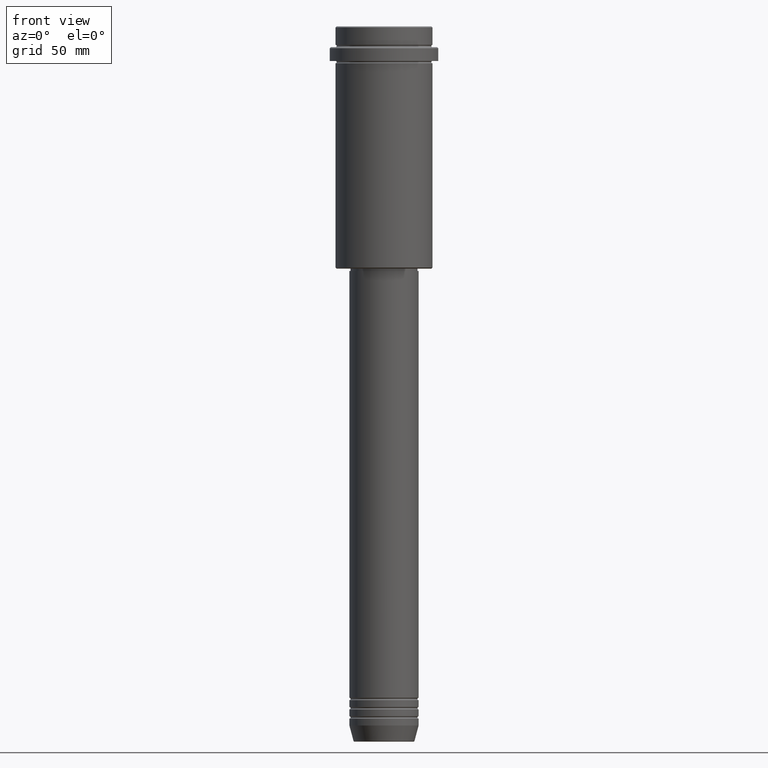
[diagram: clean part render]
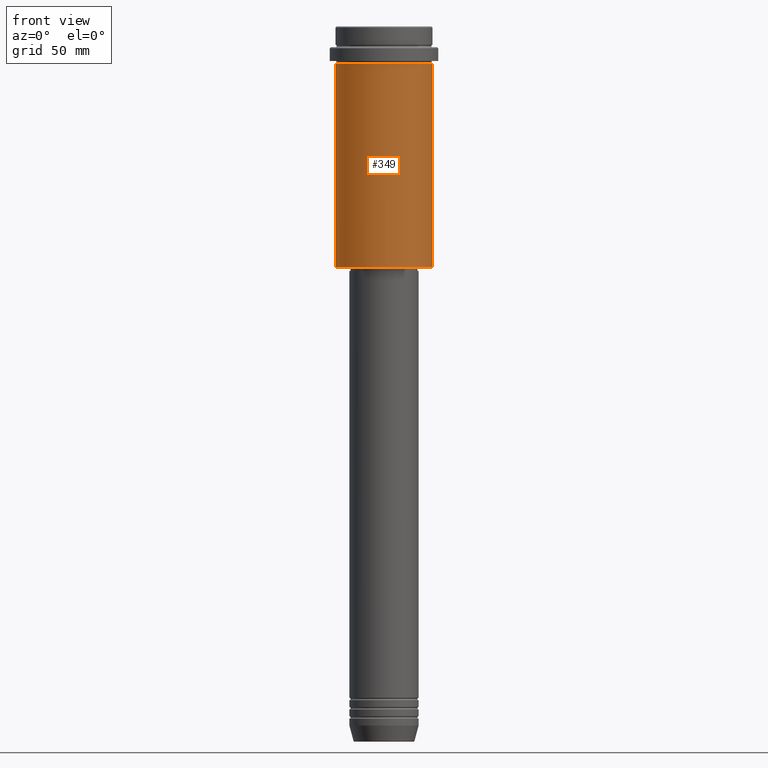
[diagram: same view with one face highlighted and labeled with its STEP entity id]
A machine part, front view. The second image highlights one B-rep face of the part: STEP entity #349.
In plain terms, the highlighted cylindrical surface (partial cylindrical patch) has radius 21 mm, axis along (-0, -0, 1).
Its self-contained STEP definition (entity closure, byte-faithful):
#50 = CYLINDRICAL_SURFACE ( 'NONE', #871, 21.00000000000000000 ) ;
#53 = CARTESIAN_POINT ( 'NONE',  ( 0.000000000000000000, 0.000000000000000000, -104.5000000000000853 ) ) ;
#63 = FACE_OUTER_BOUND ( 'NONE', #1132, .T. ) ;
#82 = EDGE_CURVE ( 'NONE', #336, #1262, #97, .T. ) ;
#97 = LINE ( 'NONE', #856, #958 ) ;
#156 = DIRECTION ( 'NONE',  ( -0.000000000000000000, -0.000000000000000000, 1.000000000000000000 ) ) ;
#159 = CARTESIAN_POINT ( 'NONE',  ( 0.000000000000000000, 0.000000000000000000, -16.00000000000000355 ) ) ;
#166 = CARTESIAN_POINT ( 'NONE',  ( 21.00000000000000000, 0.000000000000000000, -16.00000000000000355 ) ) ;
#239 = ORIENTED_EDGE ( 'NONE', *, *, #543, .F. ) ;
#287 = CARTESIAN_POINT ( 'NONE',  ( 21.00000000000000000, 0.000000000000000000, -104.5000000000000853 ) ) ;
#297 = CARTESIAN_POINT ( 'NONE',  ( 0.000000000000000000, 0.000000000000000000, 0.000000000000000000 ) ) ;
#336 = VERTEX_POINT ( 'NONE', #287 ) ;
#349 = ADVANCED_FACE ( 'NONE', ( #63 ), #50, .T. ) ;
#373 = DIRECTION ( 'NONE',  ( 1.000000000000000000, 0.000000000000000000, 0.000000000000000000 ) ) ;
#425 = CARTESIAN_POINT ( 'NONE',  ( -21.00000000000000000, 2.571758278209441661E-15, -104.5000000000000853 ) ) ;
#442 = CARTESIAN_POINT ( 'NONE',  ( -21.00000000000000000, 2.571758278209441661E-15, -16.00000000000000355 ) ) ;
#508 = AXIS2_PLACEMENT_3D ( 'NONE', #159, #921, #373 ) ;
#543 = EDGE_CURVE ( 'NONE', #1019, #952, #898, .T. ) ;
#569 = EDGE_CURVE ( 'NONE', #1019, #336, #983, .T. ) ;
#661 = DIRECTION ( 'NONE',  ( -0.000000000000000000, -0.000000000000000000, 1.000000000000000000 ) ) ;
#713 = DIRECTION ( 'NONE',  ( -1.000000000000000000, 0.000000000000000000, 0.000000000000000000 ) ) ;
#722 = DIRECTION ( 'NONE',  ( -0.000000000000000000, -0.000000000000000000, 1.000000000000000000 ) ) ;
#740 = DIRECTION ( 'NONE',  ( 1.000000000000000000, 0.000000000000000000, 0.000000000000000000 ) ) ;
#829 = CIRCLE ( 'NONE', #508, 21.00000000000000000 ) ;
#841 = ORIENTED_EDGE ( 'NONE', *, *, #569, .T. ) ;
#856 = CARTESIAN_POINT ( 'NONE',  ( 21.00000000000000000, 0.000000000000000000, 0.000000000000000000 ) ) ;
#871 = AXIS2_PLACEMENT_3D ( 'NONE', #297, #722, #740 ) ;
#881 = ORIENTED_EDGE ( 'NONE', *, *, #82, .T. ) ;
#898 = LINE ( 'NONE', #904, #1317 ) ;
#904 = CARTESIAN_POINT ( 'NONE',  ( -21.00000000000000000, 2.571758278209441661E-15, 0.000000000000000000 ) ) ;
#921 = DIRECTION ( 'NONE',  ( -0.000000000000000000, -0.000000000000000000, 1.000000000000000000 ) ) ;
#952 = VERTEX_POINT ( 'NONE', #442 ) ;
#958 = VECTOR ( 'NONE', #661, 1000.000000000000000 ) ;
#983 = CIRCLE ( 'NONE', #1339, 21.00000000000000000 ) ;
#1019 = VERTEX_POINT ( 'NONE', #425 ) ;
#1040 = ORIENTED_EDGE ( 'NONE', *, *, #1287, .F. ) ;
#1111 = DIRECTION ( 'NONE',  ( -0.000000000000000000, -0.000000000000000000, 1.000000000000000000 ) ) ;
#1132 = EDGE_LOOP ( 'NONE', ( #239, #841, #881, #1040 ) ) ;
#1262 = VERTEX_POINT ( 'NONE', #166 ) ;
#1287 = EDGE_CURVE ( 'NONE', #952, #1262, #829, .T. ) ;
#1317 = VECTOR ( 'NONE', #156, 1000.000000000000000 ) ;
#1339 = AXIS2_PLACEMENT_3D ( 'NONE', #53, #1111, #713 ) ;